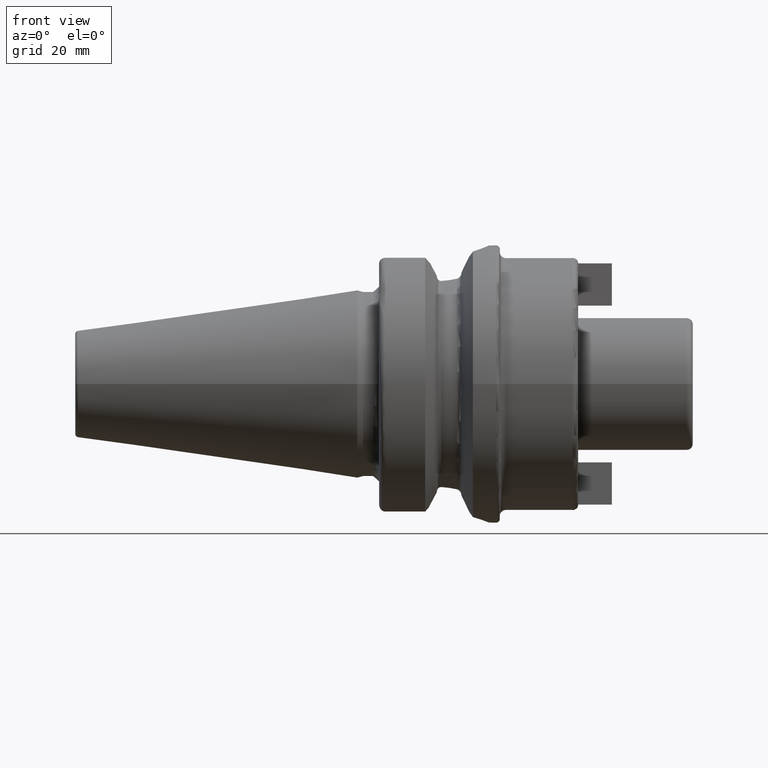
[diagram: clean part render]
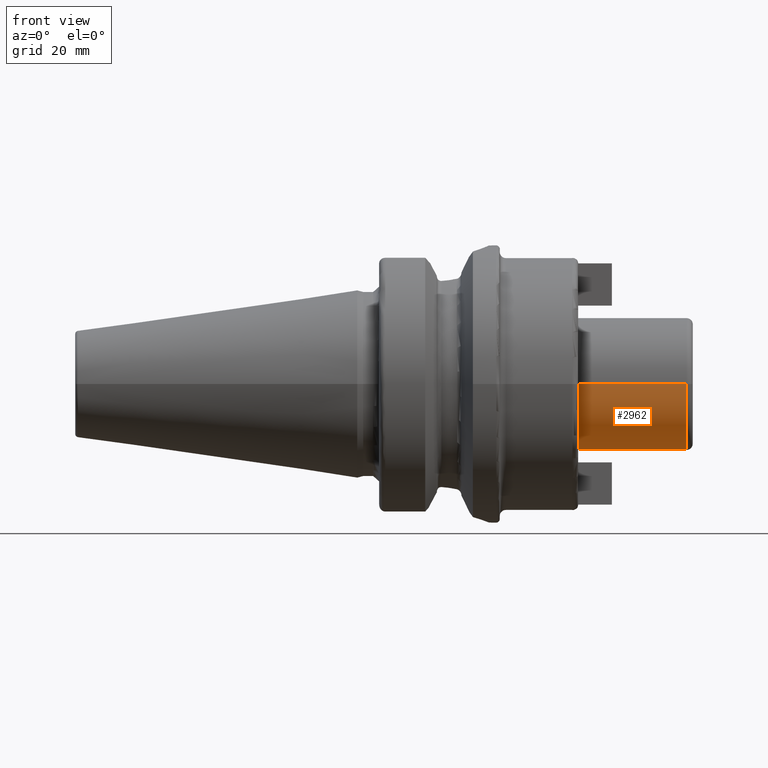
[diagram: same view with one face highlighted and labeled with its STEP entity id]
A machine part, front view. The second image highlights one B-rep face of the part: STEP entity #2962.
In plain terms, the highlighted cylindrical surface (partial cylindrical patch) has radius 11 mm, axis along (1, 0, 0).
Its self-contained STEP definition (entity closure, byte-faithful):
#908=CARTESIAN_POINT('',(3.5E1,0.E0,0.E0));
#909=DIRECTION('',(-1.E0,0.E0,0.E0));
#910=DIRECTION('',(0.E0,1.E0,0.E0));
#911=AXIS2_PLACEMENT_3D('',#908,#909,#910);
#972=CARTESIAN_POINT('',(5.3E1,0.E0,0.E0));
#973=DIRECTION('',(-1.E0,0.E0,0.E0));
#974=DIRECTION('',(0.E0,1.E0,0.E0));
#975=AXIS2_PLACEMENT_3D('',#972,#973,#974);
#977=DIRECTION('',(-1.E0,0.E0,3.997934565862E-14));
#978=VECTOR('',#977,1.8E1);
#979=CARTESIAN_POINT('',(5.3E1,1.1E1,-7.187301475359E-13));
#980=LINE('',#979,#978);
#981=DIRECTION('',(-1.E0,0.E0,-3.996063577697E-14));
#982=VECTOR('',#981,1.8E1);
#983=CARTESIAN_POINT('',(5.3E1,-1.1E1,7.183933696661E-13));
#984=LINE('',#983,#982);
#1563=CARTESIAN_POINT('',(3.5E1,1.1E1,0.E0));
#1564=CARTESIAN_POINT('',(3.5E1,-1.1E1,0.E0));
#1565=VERTEX_POINT('',#1563);
#1566=VERTEX_POINT('',#1564);
#1579=CARTESIAN_POINT('',(5.3E1,1.1E1,0.E0));
#1580=CARTESIAN_POINT('',(5.3E1,-1.1E1,0.E0));
#1581=VERTEX_POINT('',#1579);
#1582=VERTEX_POINT('',#1580);
#2951=CARTESIAN_POINT('',(2.04E1,0.E0,0.E0));
#2952=DIRECTION('',(1.E0,0.E0,0.E0));
#2953=DIRECTION('',(0.E0,-1.E0,0.E0));
#2954=AXIS2_PLACEMENT_3D('',#2951,#2952,#2953);
#2955=CYLINDRICAL_SURFACE('',#2954,1.1E1);
#2956=ORIENTED_EDGE('',*,*,#2942,.F.);
#2957=ORIENTED_EDGE('',*,*,#2917,.T.);
#2958=ORIENTED_EDGE('',*,*,#2902,.T.);
#2959=ORIENTED_EDGE('',*,*,#2914,.F.);
#2960=EDGE_LOOP('',(#2956,#2957,#2958,#2959));
#2961=FACE_OUTER_BOUND('',#2960,.F.);
#2962=ADVANCED_FACE('',(#2961),#2955,.T.);
#912=CIRCLE('',#911,1.1E1);
#976=CIRCLE('',#975,1.1E1);
#2902=EDGE_CURVE('',#1565,#1566,#912,.T.);
#2914=EDGE_CURVE('',#1582,#1566,#984,.T.);
#2917=EDGE_CURVE('',#1581,#1565,#980,.T.);
#2942=EDGE_CURVE('',#1581,#1582,#976,.T.);